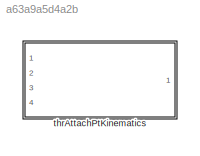
MODEL slx_a63a9a5d4a2b
KIND library
CONFIG AbsTol = auto
CONFIG EnableMultiTasking = off
CONFIG FixedStep = auto
CONFIG MaxStep = auto
CONFIG MinStep = auto
CONFIG RelTol = 1e-3
CONFIG SampleTimeConstraint = Unconstrained
CONFIG SolverName = VariableStepAuto
CONFIG StartTime = 0.0
CONFIG StopTime = 10.0
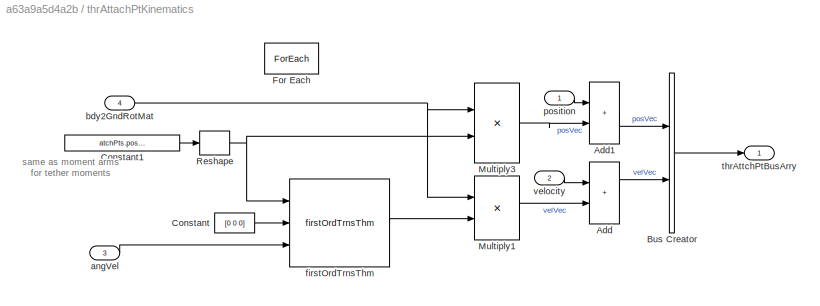
BLOCK [SubSystem] thrAttachPtKinematics
  InitFcn = thrAttachPtKinematics_init
  Ports = [4, 1]
  RequestExecContextInheritance = off
BLOCK [Sum] thrAttachPtKinematics/Add
  IconShape = rectangular
  Ports = [2, 1]
BLOCK [Sum] thrAttachPtKinematics/Add1
  IconShape = rectangular
  Ports = [2, 1]
BLOCK [BusCreator] thrAttachPtKinematics/Bus Creator
  DisplayOption = bar
  InheritFromInputs = on
  Inputs = 2
  NonVirtualBus = on
  OutDataTypeStr = Bus: thrAttachPtKinematicsBus
  Ports = [2, 1]
BLOCK [Constant] thrAttachPtKinematics/Constant
  Value = [0 0 0]
BLOCK [Constant] thrAttachPtKinematics/Constant1
  Value = atchPts.posVec
BLOCK [ForEach] thrAttachPtKinematics/For Each
  DisableCoverage = on
  IterateSubsysMaskParameter = on
  Ports = []
  SubsysMaskParameterIterationDimension = 2
BLOCK [Product] thrAttachPtKinematics/Multiply1
  Multiplication = Matrix(*)
  Ports = [2, 1]
BLOCK [Product] thrAttachPtKinematics/Multiply3
  Multiplication = Matrix(*)
  Ports = [2, 1]
BLOCK [Reshape] thrAttachPtKinematics/Reshape
  OutputDimensionality = Column vector (2-D)
  Ports = [1, 1]
BLOCK [Inport] thrAttachPtKinematics/angVel
  Port = 3
BLOCK [Inport] thrAttachPtKinematics/bdy2GndRotMat
  Port = 4
BLOCK [Reference] thrAttachPtKinematics/firstOrdTrnsThm  REF=firstOrdTrnsThm_ul/firstOrdTrnsThm
  Ports = [3, 1]
  SourceBlock = firstOrdTrnsThm_ul/firstOrdTrnsThm
  SourceType = SubSystem
BLOCK [Inport] thrAttachPtKinematics/position
BLOCK [Outport] thrAttachPtKinematics/thrAttchPtBusArry
  ConcatenationDimension = 1
  VectorParamsAs1DForOutWhenUnconnected = off
BLOCK [Inport] thrAttachPtKinematics/velocity
  Port = 2
ANNOTATION thrAttachPtKinematics: same as moment arms for tether moments
LINE thrAttachPtKinematics/Add1:1 -> thrAttachPtKinematics/Bus Creator:1
LINE thrAttachPtKinematics/Add:1 -> thrAttachPtKinematics/Bus Creator:2
LINE thrAttachPtKinematics/Bus Creator:1 -> thrAttachPtKinematics/thrAttchPtBusArry:1
LINE thrAttachPtKinematics/Constant1:1 -> thrAttachPtKinematics/Reshape:1
LINE thrAttachPtKinematics/Constant:1 -> thrAttachPtKinematics/firstOrdTrnsThm:2
LINE thrAttachPtKinematics/Multiply1:1 -> thrAttachPtKinematics/Add:2
LINE thrAttachPtKinematics/Multiply3:1 -> thrAttachPtKinematics/Add1:2
NET thrAttachPtKinematics/Reshape:1 -> thrAttachPtKinematics/Multiply3:2, thrAttachPtKinematics/firstOrdTrnsThm:1
LINE thrAttachPtKinematics/angVel:1 -> thrAttachPtKinematics/firstOrdTrnsThm:3
NET thrAttachPtKinematics/bdy2GndRotMat:1 -> thrAttachPtKinematics/Multiply1:1, thrAttachPtKinematics/Multiply3:1
LINE thrAttachPtKinematics/firstOrdTrnsThm:1 -> thrAttachPtKinematics/Multiply1:2
LINE thrAttachPtKinematics/position:1 -> thrAttachPtKinematics/Add1:1
LINE thrAttachPtKinematics/velocity:1 -> thrAttachPtKinematics/Add:1
note: NET lines group one-source signal fan-out (src -> all destinations, sorted); 1:1 wires keep LINE
